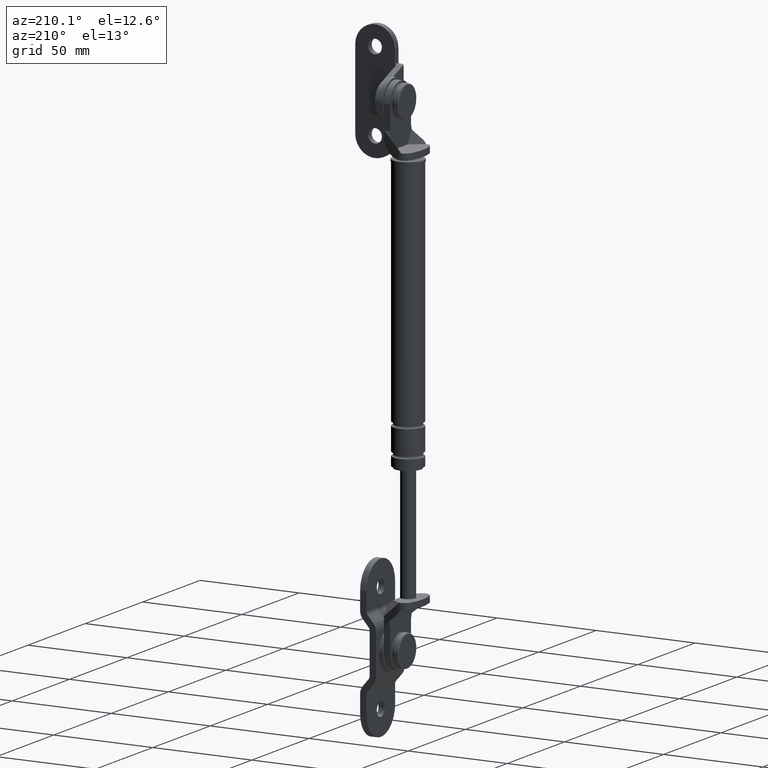
[diagram: clean part render]
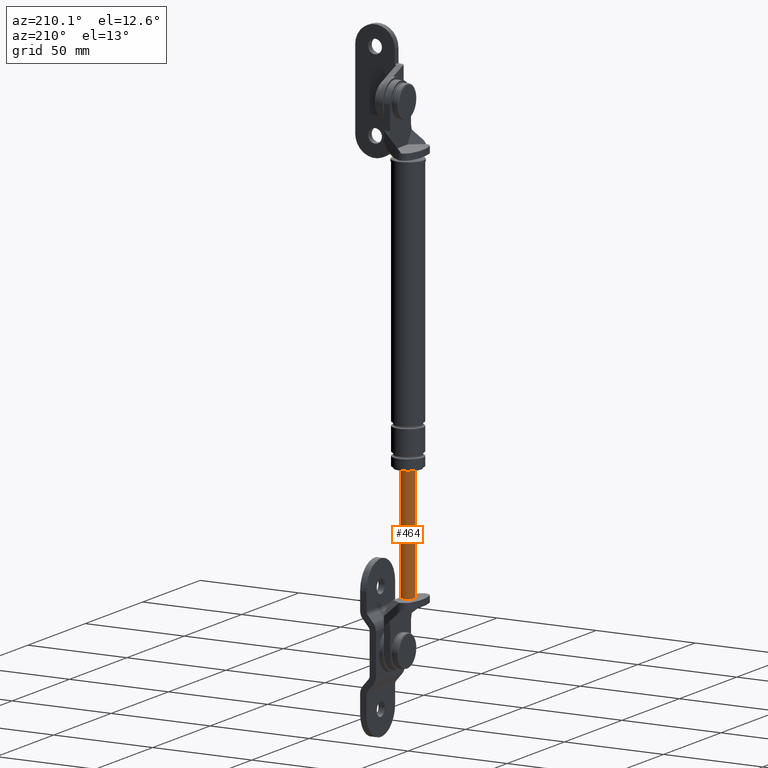
[diagram: same view with one face highlighted and labeled with its STEP entity id]
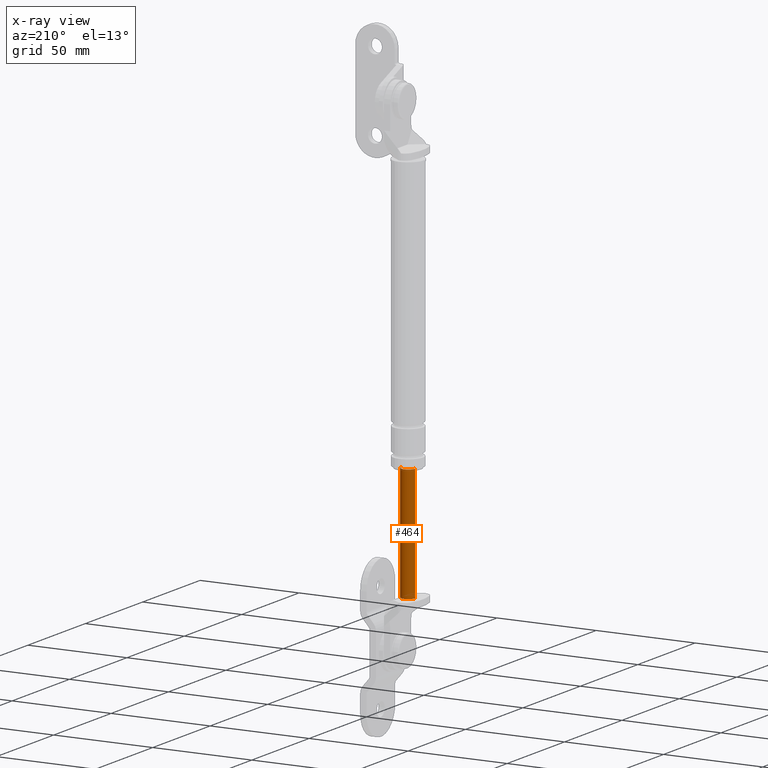
[diagram: x-ray of the same camera — body ghosted, the highlighted face saturated]
A machine part, auxiliary view. The second image highlights one B-rep face of the part: STEP entity #464.
The next image is the same camera in x-ray: the body ghosted, the highlighted face saturated — about 0% of this face is hidden behind the body in this view.
In plain terms, the highlighted cylindrical surface (edge-blend (fillet) strip) has radius 3.5 mm, axis along (0, 0, 1).
Its self-contained STEP definition (entity closure, byte-faithful):
#464=ADVANCED_FACE('',(#1892),#1891,.T.);
#1891=CYLINDRICAL_SURFACE('',#2967,3.50000000000E+000);
#1892=FACE_OUTER_BOUND('',#2968,.T.);
#2964=CARTESIAN_POINT('',(0.00000000000E+000,0.00000000000E+000,0.00000000000E+000));
#2965=DIRECTION('',(-0.00000000000E+000,-0.00000000000E+000,1.00000000000E+000));
#2966=DIRECTION('',(1.00000000000E+000,-0.00000000000E+000,-0.00000000000E+000));
#2967=AXIS2_PLACEMENT_3D('',#2964,#2965,#2966);
#2968=EDGE_LOOP('',(#3676,#3677,#3678,#3679,#3680));
#3676=ORIENTED_EDGE('',*,*,#4014,.F.);
#3677=ORIENTED_EDGE('',*,*,#4045,.F.);
#3678=ORIENTED_EDGE('',*,*,#4010,.F.);
#3679=ORIENTED_EDGE('',*,*,#4017,.F.);
#3680=ORIENTED_EDGE('',*,*,#4046,.T.);
#4010=EDGE_CURVE('',#6149,#6156,#6157,.T.);
#4014=EDGE_CURVE('',#6177,#6176,#6184,.T.);
#4017=EDGE_CURVE('',#6197,#6149,#6204,.T.);
#4045=EDGE_CURVE('',#6156,#6177,#6383,.T.);
#4046=EDGE_CURVE('',#6197,#6176,#6389,.T.);
#6149=VERTEX_POINT('',#7685);
#6156=VERTEX_POINT('',#7689);
#6157=CIRCLE('',#7693,3.50000000000E+000);
#6176=VERTEX_POINT('',#7702);
#6177=VERTEX_POINT('',#7703);
#6184=CIRCLE('',#7711,3.50000000000E+000);
#6197=VERTEX_POINT('',#7716);
#6204=CIRCLE('',#7724,3.50000000000E+000);
#6383=(BOUNDED_CURVE() B_SPLINE_CURVE(1,(#7822,#7823),.UNSPECIFIED.,.F.,.F.) B_SPLINE_CURVE_WITH_KNOTS((2,2),(8.33333332085E-002,9.16666666222E-001),.UNSPECIFIED.) CURVE() GEOMETRIC_REPRESENTATION_ITEM() RATIONAL_B_SPLINE_CURVE((1.00000000000E+000,1.00000000000E+000)) REPRESENTATION_ITEM('') );
#6389=(BOUNDED_CURVE() B_SPLINE_CURVE(1,(#7824,#7825),.UNSPECIFIED.,.F.,.F.) B_SPLINE_CURVE_WITH_KNOTS((2,2),(8.33333333333E-002,9.16666666667E-001),.UNSPECIFIED.) CURVE() GEOMETRIC_REPRESENTATION_ITEM() RATIONAL_B_SPLINE_CURVE((7.50000000000E-001,7.50000000000E-001)) REPRESENTATION_ITEM('') );
#7685=CARTESIAN_POINT('',(2.00000000000E+000,2.87228132327E+000,-1.09000015000E+002));
#7689=CARTESIAN_POINT('',(3.50000000000E+000,0.00000000000E+000,-1.09000015000E+002));
#7690=CARTESIAN_POINT('',(0.00000000000E+000,0.00000000000E+000,-1.09000015000E+002));
#7691=DIRECTION('',(0.00000000000E+000,0.00000000000E+000,-1.00000000000E+000));
#7692=DIRECTION('',(5.71428571429E-001,8.20651806648E-001,0.00000000000E+000));
#7693=AXIS2_PLACEMENT_3D('',#7690,#7691,#7692);
#7702=CARTESIAN_POINT('',(-3.50000000000E+000,0.00000000000E+000,-5.10000000000E+001));
#7703=CARTESIAN_POINT('',(3.50000000000E+000,4.44089209850E-016,-5.10000000000E+001));
#7708=CARTESIAN_POINT('',(0.00000000000E+000,0.00000000000E+000,-5.10000000000E+001));
#7709=DIRECTION('',(0.00000000000E+000,0.00000000000E+000,1.00000000000E+000));
#7710=DIRECTION('',(-1.00000000000E+000,-1.22460635382E-016,0.00000000000E+000));
#7711=AXIS2_PLACEMENT_3D('',#7708,#7709,#7710);
#7716=CARTESIAN_POINT('',(-3.50000000000E+000,-1.45175480991E-007,-1.09000015000E+002));
#7721=CARTESIAN_POINT('',(0.00000000000E+000,0.00000000000E+000,-1.09000015000E+002));
#7722=DIRECTION('',(0.00000000000E+000,0.00000000000E+000,-1.00000000000E+000));
#7723=DIRECTION('',(1.00000000000E+000,-0.00000000000E+000,-0.00000000000E+000));
#7724=AXIS2_PLACEMENT_3D('',#7721,#7722,#7723);
#7822=CARTESIAN_POINT('',(3.50000000000E+000,0.00000000000E+000,-1.09000015009E+002));
#7823=CARTESIAN_POINT('',(3.50000000000E+000,0.00000000000E+000,-5.10000000310E+001));
#7824=CARTESIAN_POINT('',(-3.50000000000E+000,0.00000000000E+000,-1.09000015000E+002));
#7825=CARTESIAN_POINT('',(-3.50000000000E+000,0.00000000000E+000,-5.10000000000E+001));